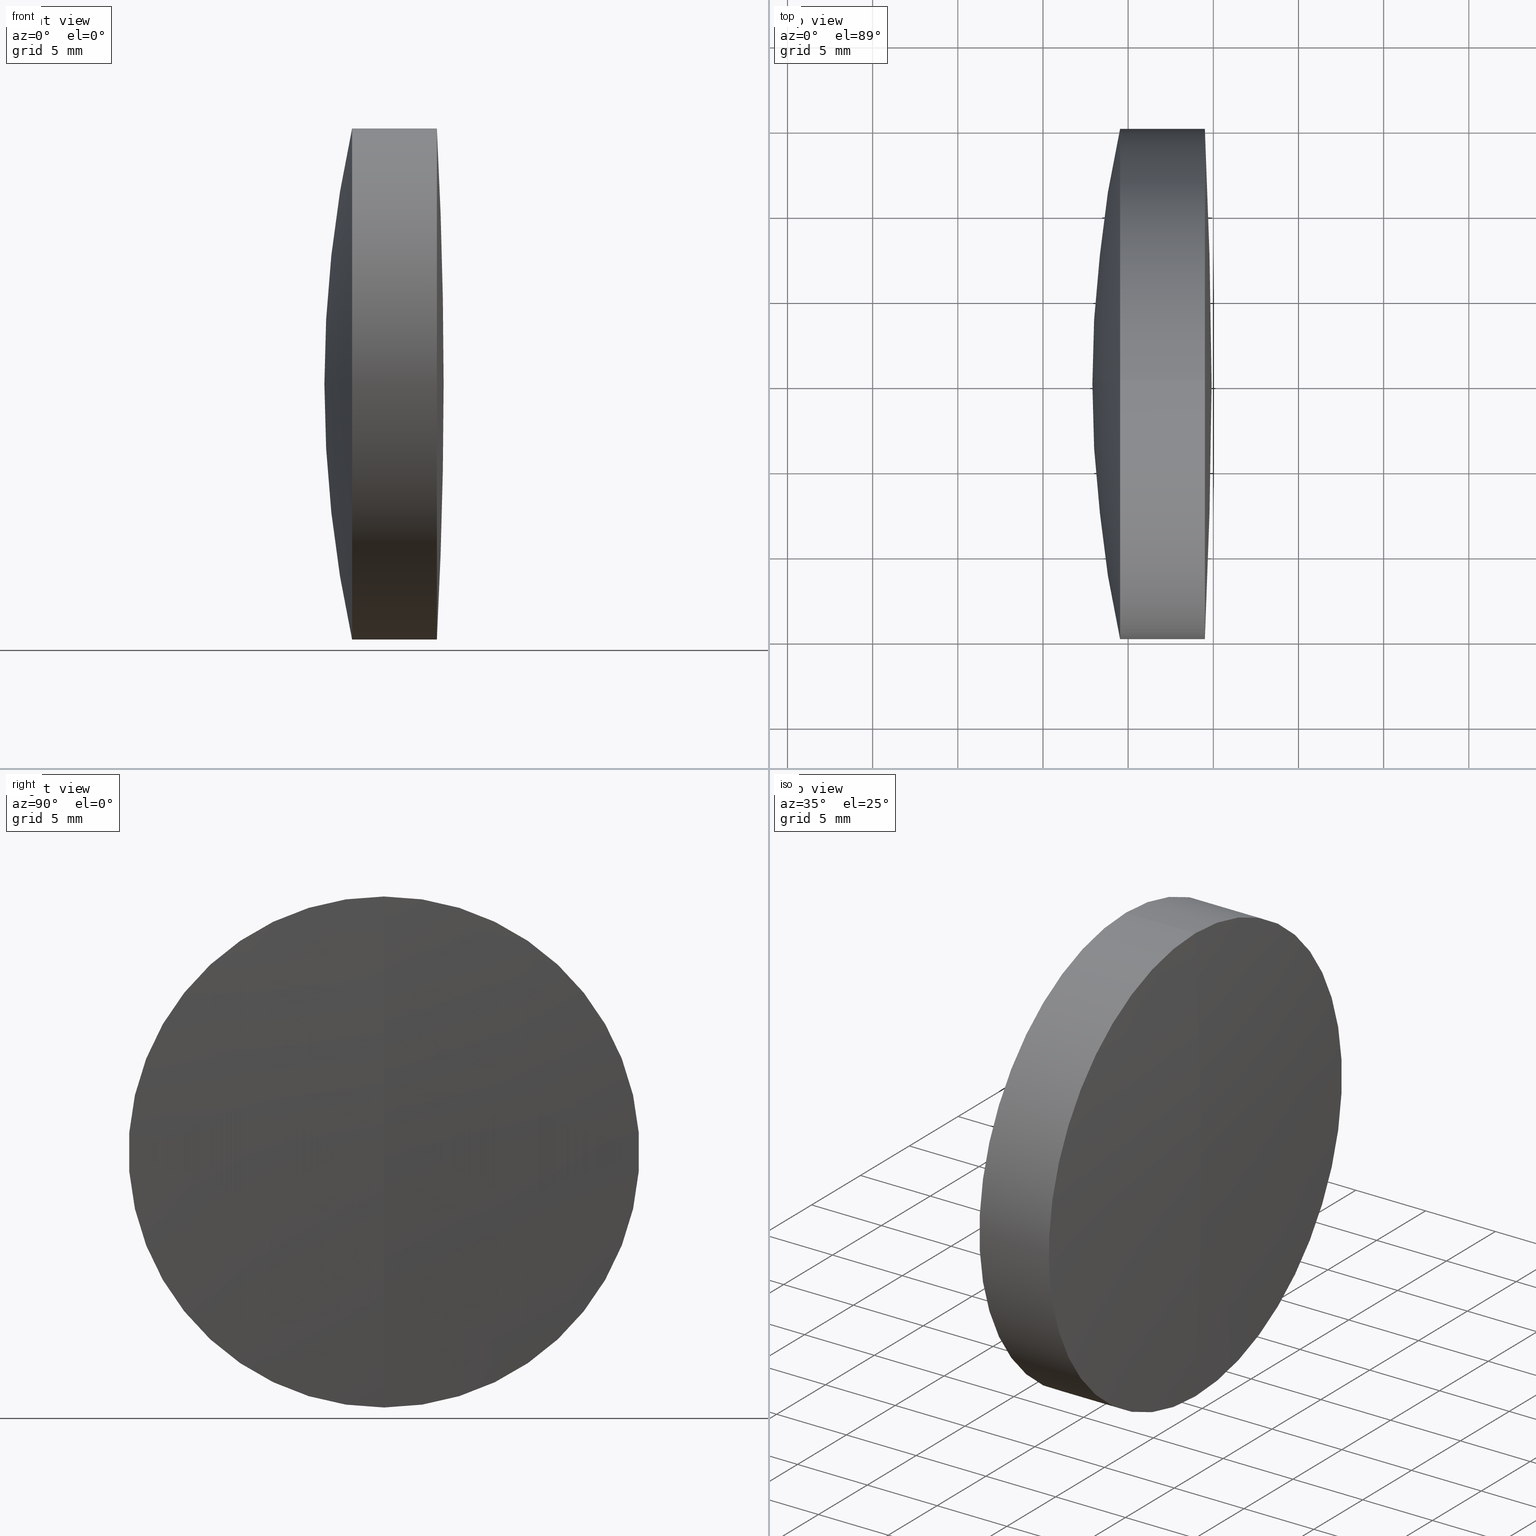
[diagram: canonical four-view strip — front | top / right | iso, engineering-drawing reading convention]
A machine part, canonical four-view strip (front | top / right | iso — engineering-drawing reading convention). The complete STEP part file that produces these views, byte-faithful:
ISO-10303-21;
HEADER;
FILE_DESCRIPTION (( 'STEP AP214' ),
    '1' );
FILE_NAME ('145068.STEP',
    '2019-05-15T03:12:47',
    ( 'user' ),
    ( '΢���й�' ),
    'SwSTEP 2.0',
    'SolidWorks 2016',
    '' );
FILE_SCHEMA (( 'AUTOMOTIVE_DESIGN' ));
ENDSEC;

DATA;
#1 = ORIENTED_EDGE ( 'NONE', *, *, #189, .F. ) ;
#2 = LINE ( 'NONE', #83, #293 ) ;
#3 = CYLINDRICAL_SURFACE ( 'NONE', #71, 14.99999999999988100 ) ;
#4 = DIRECTION ( 'NONE',  ( 0.0000000000000000000, 1.000000000000000000, 0.0000000000000000000 ) ) ;
#5 = FILL_AREA_STYLE ('',( #304 ) ) ;
#6 = FILL_AREA_STYLE ('',( #11 ) ) ;
#7 = AXIS2_PLACEMENT_3D ( 'NONE', #138, #292, #113 ) ;
#8 = ORIENTED_EDGE ( 'NONE', *, *, #305, .T. ) ;
#9 = PRESENTATION_STYLE_ASSIGNMENT (( #270 ) ) ;
#10 = AXIS2_PLACEMENT_3D ( 'NONE', #191, #13, #168 ) ;
#11 = FILL_AREA_STYLE_COLOUR ( '', #96 ) ;
#12 = ORIENTED_EDGE ( 'NONE', *, *, #234, .T. ) ;
#13 = DIRECTION ( 'NONE',  ( -0.0000000000000000000, 1.000000000000000000, 1.224646799147353200E-016 ) ) ;
#14 = ORIENTED_EDGE ( 'NONE', *, *, #105, .T. ) ;
#15 = DIRECTION ( 'NONE',  ( 0.0000000000000000000, -1.224646799147353200E-016, 1.000000000000000000 ) ) ;
#16 = AXIS2_PLACEMENT_3D ( 'NONE', #241, #185, #32 ) ;
#17 = CARTESIAN_POINT ( 'NONE',  ( 234.5265290828657800, 0.0000000000000000000, 14.99999999999989300 ) ) ;
#18 = MECHANICAL_DESIGN_GEOMETRIC_PRESENTATION_REPRESENTATION (  '', ( #159 ), #197 ) ;
#19 = ORIENTED_EDGE ( 'NONE', *, *, #150, .T. ) ;
#20 = DIRECTION ( 'NONE',  ( 1.000000000000000000, 0.0000000000000000000, 0.0000000000000000000 ) ) ;
#21 = SPHERICAL_SURFACE ( 'NONE', #92, 284.3999999999999800 ) ;
#22 = CARTESIAN_POINT ( 'NONE',  ( 180.9005007387521300, 0.0000000000000000000, -2.168404344971008900E-016 ) ) ;
#23 = ORIENTED_EDGE ( 'NONE', *, *, #202, .F. ) ;
#24 = ADVANCED_FACE ( 'NONE', ( #37 ), #240, .T. ) ;
#25 = CIRCLE ( 'NONE', #215, 57.00000000000033400 ) ;
#26 = ADVANCED_FACE ( 'NONE', ( #314 ), #21, .T. ) ;
#27 = CARTESIAN_POINT ( 'NONE',  ( 302.9005007387524400, 0.0000000000000000000, -2.198847408964090500E-013 ) ) ;
#28 = PRODUCT_DEFINITION_SHAPE ( 'NONE', 'NONE',  #72 ) ;
#29 = PRODUCT_CONTEXT ( 'NONE', #160, 'mechanical' ) ;
#30 = DIRECTION ( 'NONE',  ( 0.0000000000000000000, -1.224646799147353200E-016, 1.000000000000000000 ) ) ;
#31 = LINE ( 'NONE', #164, #345 ) ;
#32 = DIRECTION ( 'NONE',  ( 0.0000000000000000000, 0.0000000000000000000, -1.000000000000000000 ) ) ;
#33 = ADVANCED_BREP_SHAPE_REPRESENTATION ( '145068', ( #210, #43, #287 ), #235 ) ;
#34 = DIRECTION ( 'NONE',  ( -1.000000000000000000, -0.0000000000000000000, -0.0000000000000000000 ) ) ;
#35 = DIRECTION ( 'NONE',  ( -1.000000000000000000, -0.0000000000000000000, -0.0000000000000000000 ) ) ;
#36 = DIRECTION ( 'NONE',  ( 0.0000000000000000000, 1.000000000000000000, 0.0000000000000000000 ) ) ;
#37 = FACE_OUTER_BOUND ( 'NONE', #280, .T. ) ;
#38 = CARTESIAN_POINT ( 'NONE',  ( -44.49949926124752200, 0.0000000000000000000, 0.0000000000000000000 ) ) ;
#39 = FACE_OUTER_BOUND ( 'NONE', #331, .T. ) ;
#40 = ORIENTED_EDGE ( 'NONE', *, *, #63, .T. ) ;
#41 = DIRECTION ( 'NONE',  ( -0.0000000000000000000, 1.000000000000000000, 1.224646799147353200E-016 ) ) ;
#42 = CARTESIAN_POINT ( 'NONE',  ( 302.9005007387524400, 0.0000000000000000000, -2.198847408964090500E-013 ) ) ;
#43 = MANIFOLD_SOLID_BREP ( '��ת3', #212 ) ;
#44 = CARTESIAN_POINT ( 'NONE',  ( 239.5046556379369900, 1.836970198721015000E-015, -14.99999999999987400 ) ) ;
#45 = AXIS2_PLACEMENT_3D ( 'NONE', #221, #266, #169 ) ;
#46 = VERTEX_POINT ( 'NONE', #17 ) ;
#47 = SURFACE_STYLE_FILL_AREA ( #219 ) ;
#48 = EDGE_CURVE ( 'NONE', #285, #339, #148, .T. ) ;
#49 = CARTESIAN_POINT ( 'NONE',  ( 239.5046556379369900, 0.0000000000000000000, 14.99999999999987400 ) ) ;
#50 = STYLED_ITEM ( 'NONE', ( #124 ), #210 ) ;
#51 = ORIENTED_EDGE ( 'NONE', *, *, #347, .F. ) ;
#52 = DIRECTION ( 'NONE',  ( 0.0000000000000000000, 1.000000000000000000, 0.0000000000000000000 ) ) ;
#53 = AXIS2_PLACEMENT_3D ( 'NONE', #192, #330, #85 ) ;
#54 = FACE_OUTER_BOUND ( 'NONE', #298, .T. ) ;
#55 = ORIENTED_EDGE ( 'NONE', *, *, #84, .F. ) ;
#56 = DIRECTION ( 'NONE',  ( 0.0000000000000000000, 0.0000000000000000000, 1.000000000000000000 ) ) ;
#57 = SURFACE_SIDE_STYLE ('',( #68 ) ) ;
#58 = AXIS2_PLACEMENT_3D ( 'NONE', #299, #119, #268 ) ;
#59 = VERTEX_POINT ( 'NONE', #173 ) ;
#60 = DIRECTION ( 'NONE',  ( -1.000000000000000000, -0.0000000000000000000, -0.0000000000000000000 ) ) ;
#61 = DIRECTION ( 'NONE',  ( -0.0000000000000000000, 1.000000000000000000, 1.224646799147353200E-016 ) ) ;
#62 = CARTESIAN_POINT ( 'NONE',  ( 234.5265290828657800, 1.836970198721017000E-015, -15.00000000000011400 ) ) ;
#63 = EDGE_CURVE ( 'NONE', #156, #339, #102, .T. ) ;
#64 =( NAMED_UNIT ( * ) PLANE_ANGLE_UNIT ( ) SI_UNIT ( $, .RADIAN. ) );
#65 = APPLICATION_PROTOCOL_DEFINITION ( 'draft international standard', 'automotive_design', 1998, #160 ) ;
#66 = PRODUCT ( '145068', '145068', '', ( #29 ) ) ;
#67 = ORIENTED_EDGE ( 'NONE', *, *, #123, .T. ) ;
#68 = SURFACE_STYLE_FILL_AREA ( #6 ) ;
#69 = ORIENTED_EDGE ( 'NONE', *, *, #224, .T. ) ;
#70 = AXIS2_PLACEMENT_3D ( 'NONE', #225, #41, #15 ) ;
#71 = AXIS2_PLACEMENT_3D ( 'NONE', #265, #60, #110 ) ;
#72 = PRODUCT_DEFINITION ( 'δ֪', '', #205, #223 ) ;
#73 = COLOUR_RGB ( '',1.000000000000000000, 1.000000000000000000, 1.000000000000000000 ) ;
#74 = EDGE_CURVE ( 'NONE', #328, #46, #336, .T. ) ;
#75 = DIRECTION ( 'NONE',  ( 0.0000000000000000000, 1.000000000000000000, 0.0000000000000000000 ) ) ;
#76 = VERTEX_POINT ( 'NONE', #143 ) ;
#77 = CARTESIAN_POINT ( 'NONE',  ( 235.8914090782225800, 0.0000000000000000000, 14.99999999999989200 ) ) ;
#78 = DIRECTION ( 'NONE',  ( -0.0000000000000000000, 1.000000000000000000, 1.224646799147353200E-016 ) ) ;
#79 = AXIS2_PLACEMENT_3D ( 'NONE', #188, #75, #166 ) ;
#80 = APPLICATION_PROTOCOL_DEFINITION ( 'draft international standard', 'automotive_design', 1998, #262 ) ;
#81 = AXIS2_PLACEMENT_3D ( 'NONE', #325, #134, #290 ) ;
#82 = ORIENTED_EDGE ( 'NONE', *, *, #130, .F. ) ;
#83 = CARTESIAN_POINT ( 'NONE',  ( -0.5519199926577972300, 0.0000000000000000000, 14.99999999999988100 ) ) ;
#84 = EDGE_CURVE ( 'NONE', #76, #289, #136, .T. ) ;
#85 = DIRECTION ( 'NONE',  ( 0.0000000000000000000, 0.0000000000000000000, 1.000000000000000000 ) ) ;
#86 = DIRECTION ( 'NONE',  ( 0.0000000000000000000, -1.224646799147353200E-016, 1.000000000000000000 ) ) ;
#87 = ORIENTED_EDGE ( 'NONE', *, *, #63, .F. ) ;
#88 = DIRECTION ( 'NONE',  ( 0.0000000000000000000, 0.0000000000000000000, 1.000000000000000000 ) ) ;
#89 =( NAMED_UNIT ( * ) PLANE_ANGLE_UNIT ( ) SI_UNIT ( $, .RADIAN. ) );
#90 = AXIS2_PLACEMENT_3D ( 'NONE', #195, #310, #338 ) ;
#91 = DIRECTION ( 'NONE',  ( -1.000000000000000000, -0.0000000000000000000, -0.0000000000000000000 ) ) ;
#92 = AXIS2_PLACEMENT_3D ( 'NONE', #141, #36, #115 ) ;
#93 = CARTESIAN_POINT ( 'NONE',  ( 235.8914090782225800, 0.0000000000000000000, 0.0000000000000000000 ) ) ;
#94 = ORIENTED_EDGE ( 'NONE', *, *, #305, .F. ) ;
#95 = DIRECTION ( 'NONE',  ( 0.0000000000000000000, 0.0000000000000000000, 1.000000000000000000 ) ) ;
#96 = COLOUR_RGB ( '',1.000000000000000000, 1.000000000000000000, 1.000000000000000000 ) ;
#97 = UNCERTAINTY_MEASURE_WITH_UNIT (LENGTH_MEASURE( 1.000000000000000100E-005 ), #147, 'distance_accuracy_value', 'NONE');
#98 =( NAMED_UNIT ( * ) SI_UNIT ( $, .STERADIAN. ) SOLID_ANGLE_UNIT ( ) );
#99 = AXIS2_PLACEMENT_3D ( 'NONE', #38, #259, #238 ) ;
#100 = FACE_OUTER_BOUND ( 'NONE', #344, .T. ) ;
#101 = ORIENTED_EDGE ( 'NONE', *, *, #130, .T. ) ;
#102 = CIRCLE ( 'NONE', #70, 284.3999999999999800 ) ;
#103 = ORIENTED_EDGE ( 'NONE', *, *, #133, .T. ) ;
#104 = ORIENTED_EDGE ( 'NONE', *, *, #48, .F. ) ;
#105 = EDGE_CURVE ( 'NONE', #59, #257, #132, .T. ) ;
#106 = ORIENTED_EDGE ( 'NONE', *, *, #254, .F. ) ;
#107 =( NAMED_UNIT ( * ) PLANE_ANGLE_UNIT ( ) SI_UNIT ( $, .RADIAN. ) );
#108 = AXIS2_PLACEMENT_3D ( 'NONE', #295, #114, #267 ) ;
#109 = SURFACE_STYLE_FILL_AREA ( #5 ) ;
#110 = DIRECTION ( 'NONE',  ( 0.0000000000000000000, 0.0000000000000000000, 1.000000000000000000 ) ) ;
#111 = EDGE_CURVE ( 'NONE', #156, #285, #232, .T. ) ;
#112 = ORIENTED_EDGE ( 'NONE', *, *, #202, .T. ) ;
#113 = DIRECTION ( 'NONE',  ( 0.0000000000000000000, 0.0000000000000000000, 1.000000000000000000 ) ) ;
#114 = DIRECTION ( 'NONE',  ( -1.000000000000000000, -0.0000000000000000000, -0.0000000000000000000 ) ) ;
#115 = DIRECTION ( 'NONE',  ( 0.0000000000000000000, 0.0000000000000000000, 1.000000000000000000 ) ) ;
#116 = AXIS2_PLACEMENT_3D ( 'NONE', #193, #4, #228 ) ;
#117 = DIRECTION ( 'NONE',  ( -1.000000000000000000, -0.0000000000000000000, -0.0000000000000000000 ) ) ;
#118 = SPHERICAL_SURFACE ( 'NONE', #283, 69.99999999999998600 ) ;
#119 = DIRECTION ( 'NONE',  ( -1.000000000000000000, -0.0000000000000000000, -0.0000000000000000000 ) ) ;
#120 = DIRECTION ( 'NONE',  ( -1.000000000000000000, -0.0000000000000000000, -0.0000000000000000000 ) ) ;
#121 = SURFACE_SIDE_STYLE ('',( #47 ) ) ;
#122 = CARTESIAN_POINT ( 'NONE',  ( 235.8914090782225800, 0.0000000000000000000, 0.0000000000000000000 ) ) ;
#123 = EDGE_CURVE ( 'NONE', #289, #328, #207, .T. ) ;
#124 = PRESENTATION_STYLE_ASSIGNMENT (( #324 ) ) ;
#125 = AXIS2_PLACEMENT_3D ( 'NONE', #93, #131, #320 ) ;
#126 = ADVANCED_FACE ( 'NONE', ( #39 ), #213, .T. ) ;
#127 = ADVANCED_FACE ( 'NONE', ( #275 ), #3, .T. ) ;
#128 = SPHERICAL_SURFACE ( 'NONE', #316, 57.00000000000033400 ) ;
#129 = ORIENTED_EDGE ( 'NONE', *, *, #111, .F. ) ;
#130 = EDGE_CURVE ( 'NONE', #339, #59, #309, .T. ) ;
#131 = DIRECTION ( 'NONE',  ( -1.000000000000000000, -0.0000000000000000000, -0.0000000000000000000 ) ) ;
#132 = CIRCLE ( 'NONE', #108, 14.99999999999988600 ) ;
#133 = EDGE_CURVE ( 'NONE', #328, #237, #203, .T. ) ;
#134 = DIRECTION ( 'NONE',  ( 0.0000000000000000000, -1.000000000000000000, 0.0000000000000000000 ) ) ;
#135 = ORIENTED_EDGE ( 'NONE', *, *, #196, .F. ) ;
#136 = CIRCLE ( 'NONE', #10, 57.00000000000033400 ) ;
#137 = ORIENTED_EDGE ( 'NONE', *, *, #150, .F. ) ;
#138 = CARTESIAN_POINT ( 'NONE',  ( 239.5046556379369900, 0.0000000000000000000, 0.0000000000000000000 ) ) ;
#139 = AXIS2_PLACEMENT_3D ( 'NONE', #288, #52, #220 ) ;
#140 = DIRECTION ( 'NONE',  ( 0.0000000000000000000, 0.0000000000000000000, 1.000000000000000000 ) ) ;
#141 = CARTESIAN_POINT ( 'NONE',  ( -44.49949926124752200, 0.0000000000000000000, 0.0000000000000000000 ) ) ;
#142 = SPHERICAL_SURFACE ( 'NONE', #79, 57.00000000000033400 ) ;
#143 = CARTESIAN_POINT ( 'NONE',  ( 237.9005007387524700, 0.0000000000000000000, 3.273402943072876500E-015 ) ) ;
#144 = ORIENTED_EDGE ( 'NONE', *, *, #84, .T. ) ;
#145 = FACE_OUTER_BOUND ( 'NONE', #179, .T. ) ;
#146 = CIRCLE ( 'NONE', #81, 57.00000000000033400 ) ;
#147 =( LENGTH_UNIT ( ) NAMED_UNIT ( * ) SI_UNIT ( .MILLI., .METRE. ) );
#148 = CIRCLE ( 'NONE', #58, 14.99999999999987400 ) ;
#149 = ADVANCED_FACE ( 'NONE', ( #245 ), #163, .F. ) ;
#150 = EDGE_CURVE ( 'NONE', #339, #285, #315, .T. ) ;
#151 = DIRECTION ( 'NONE',  ( 0.0000000000000000000, 1.000000000000000000, 0.0000000000000000000 ) ) ;
#152 = ADVANCED_FACE ( 'NONE', ( #145 ), #329, .T. ) ;
#153 = UNCERTAINTY_MEASURE_WITH_UNIT (LENGTH_MEASURE( 1.000000000000000100E-005 ), #162, 'distance_accuracy_value', 'NONE');
#154 = ADVANCED_FACE ( 'NONE', ( #178 ), #142, .F. ) ;
#155 =( GEOMETRIC_REPRESENTATION_CONTEXT ( 3 ) GLOBAL_UNCERTAINTY_ASSIGNED_CONTEXT ( ( #311 ) ) GLOBAL_UNIT_ASSIGNED_CONTEXT ( ( #343, #89, #301 ) ) REPRESENTATION_CONTEXT ( 'NONE', 'WORKASPACE' ) );
#156 = VERTEX_POINT ( 'NONE', #216 ) ;
#157 = DIRECTION ( 'NONE',  ( 0.0000000000000000000, 0.0000000000000000000, 1.000000000000000000 ) ) ;
#158 = ORIENTED_EDGE ( 'NONE', *, *, #74, .T. ) ;
#159 = STYLED_ITEM ( 'NONE', ( #9 ), #43 ) ;
#160 = APPLICATION_CONTEXT ( 'automotive_design' ) ;
#161 = ORIENTED_EDGE ( 'NONE', *, *, #196, .T. ) ;
#162 =( LENGTH_UNIT ( ) NAMED_UNIT ( * ) SI_UNIT ( .MILLI., .METRE. ) );
#163 = SPHERICAL_SURFACE ( 'NONE', #139, 57.00000000000033400 ) ;
#164 = CARTESIAN_POINT ( 'NONE',  ( 124.5233095260452400, 0.0000000000000000000, 14.99999999999990200 ) ) ;
#165 = MECHANICAL_DESIGN_GEOMETRIC_PRESENTATION_REPRESENTATION (  '', ( #170 ), #155 ) ;
#166 = DIRECTION ( 'NONE',  ( 0.0000000000000000000, 0.0000000000000000000, 1.000000000000000000 ) ) ;
#167 = EDGE_LOOP ( 'NONE', ( #82, #19, #12, #319 ) ) ;
#168 = DIRECTION ( 'NONE',  ( 0.0000000000000000000, -1.224646799147353200E-016, 1.000000000000000000 ) ) ;
#169 = DIRECTION ( 'NONE',  ( 0.0000000000000000000, 0.0000000000000000000, 1.000000000000000000 ) ) ;
#170 = STYLED_ITEM ( 'NONE', ( #340 ), #33 ) ;
#171 = VERTEX_POINT ( 'NONE', #264 ) ;
#172 = DIRECTION ( 'NONE',  ( 0.0000000000000000000, 1.000000000000000000, 0.0000000000000000000 ) ) ;
#173 = CARTESIAN_POINT ( 'NONE',  ( 235.8914090782225800, 1.836970198721016600E-015, -14.99999999999989200 ) ) ;
#174 = MECHANICAL_DESIGN_GEOMETRIC_PRESENTATION_REPRESENTATION (  '', ( #50 ), #323 ) ;
#175 = CARTESIAN_POINT ( 'NONE',  ( 232.9005007387524700, 0.0000000000000000000, -2.155984770993932900E-013 ) ) ;
#176 = PRESENTATION_LAYER_ASSIGNMENT (  '', '', ( #159 ) ) ;
#177 = EDGE_LOOP ( 'NONE', ( #135, #248, #14 ) ) ;
#178 = FACE_OUTER_BOUND ( 'NONE', #342, .T. ) ;
#179 = EDGE_LOOP ( 'NONE', ( #87, #190, #137 ) ) ;
#180 = AXIS2_PLACEMENT_3D ( 'NONE', #27, #236, #258 ) ;
#181 = COLOUR_RGB ( '',1.000000000000000000, 1.000000000000000000, 1.000000000000000000 ) ;
#182 = ORIENTED_EDGE ( 'NONE', *, *, #347, .T. ) ;
#183 = CARTESIAN_POINT ( 'NONE',  ( 235.8914090782225800, 0.0000000000000000000, 0.0000000000000000000 ) ) ;
#184 = SURFACE_STYLE_USAGE ( .BOTH. , #322 ) ;
#185 = DIRECTION ( 'NONE',  ( 0.0000000000000000000, -1.000000000000000000, 0.0000000000000000000 ) ) ;
#186 = DIRECTION ( 'NONE',  ( 0.0000000000000000000, 0.0000000000000000000, 1.000000000000000000 ) ) ;
#187 = ORIENTED_EDGE ( 'NONE', *, *, #313, .F. ) ;
#188 = CARTESIAN_POINT ( 'NONE',  ( 180.9005007387521300, 0.0000000000000000000, -2.168404344971008900E-016 ) ) ;
#189 = EDGE_CURVE ( 'NONE', #46, #328, #286, .T. ) ;
#190 = ORIENTED_EDGE ( 'NONE', *, *, #111, .T. ) ;
#191 = CARTESIAN_POINT ( 'NONE',  ( 180.9005007387521300, 0.0000000000000000000, -2.168404344971008900E-016 ) ) ;
#192 = CARTESIAN_POINT ( 'NONE',  ( -44.49949926124752200, 0.0000000000000000000, 0.0000000000000000000 ) ) ;
#193 = CARTESIAN_POINT ( 'NONE',  ( 302.9005007387524400, 0.0000000000000000000, -2.198847408964090500E-013 ) ) ;
#194 = CARTESIAN_POINT ( 'NONE',  ( -0.5519199926577972300, 0.0000000000000000000, 0.0000000000000000000 ) ) ;
#195 = CARTESIAN_POINT ( 'NONE',  ( 180.9005007387521300, 0.0000000000000000000, -2.168404344971008900E-016 ) ) ;
#196 = EDGE_CURVE ( 'NONE', #171, #257, #146, .T. ) ;
#197 =( GEOMETRIC_REPRESENTATION_CONTEXT ( 3 ) GLOBAL_UNCERTAINTY_ASSIGNED_CONTEXT ( ( #211 ) ) GLOBAL_UNIT_ASSIGNED_CONTEXT ( ( #251, #64, #227 ) ) REPRESENTATION_CONTEXT ( 'NONE', 'WORKASPACE' ) );
#198 = FACE_OUTER_BOUND ( 'NONE', #206, .T. ) ;
#199 = AXIS2_PLACEMENT_3D ( 'NONE', #297, #117, #88 ) ;
#200 = ORIENTED_EDGE ( 'NONE', *, *, #123, .F. ) ;
#201 = CARTESIAN_POINT ( 'NONE',  ( 302.9005007387524400, 0.0000000000000000000, -2.198847408964090500E-013 ) ) ;
#202 = EDGE_CURVE ( 'NONE', #76, #263, #222, .T. ) ;
#203 = CIRCLE ( 'NONE', #204, 69.99999999999998600 ) ;
#204 = AXIS2_PLACEMENT_3D ( 'NONE', #42, #61, #86 ) ;
#205 = PRODUCT_DEFINITION_FORMATION_WITH_SPECIFIED_SOURCE ( '�κ�', '', #66, .NOT_KNOWN. ) ;
#206 = EDGE_LOOP ( 'NONE', ( #252, #67, #1, #282 ) ) ;
#207 = LINE ( 'NONE', #246, #244 ) ;
#208 = DIRECTION ( 'NONE',  ( -1.000000000000000000, -0.0000000000000000000, -0.0000000000000000000 ) ) ;
#209 = ORIENTED_EDGE ( 'NONE', *, *, #234, .F. ) ;
#210 = MANIFOLD_SOLID_BREP ( '��ת1', #271 ) ;
#211 = UNCERTAINTY_MEASURE_WITH_UNIT (LENGTH_MEASURE( 1.000000000000000100E-005 ), #251, 'distance_accuracy_value', 'NONE');
#212 = CLOSED_SHELL ( 'NONE', ( #26, #126, #149, #154, #127, #152 ) ) ;
#213 = CYLINDRICAL_SURFACE ( 'NONE', #260, 14.99999999999988100 ) ;
#214 = CARTESIAN_POINT ( 'NONE',  ( 234.5265290828657800, 0.0000000000000000000, 0.0000000000000000000 ) ) ;
#215 = AXIS2_PLACEMENT_3D ( 'NONE', #333, #78, #30 ) ;
#216 = CARTESIAN_POINT ( 'NONE',  ( 239.9005007387524700, 0.0000000000000000000, 1.741447748387536100E-014 ) ) ;
#217 = DIRECTION ( 'NONE',  ( -1.000000000000000000, -0.0000000000000000000, -0.0000000000000000000 ) ) ;
#218 = CIRCLE ( 'NONE', #180, 69.99999999999998600 ) ;
#219 = FILL_AREA_STYLE ('',( #296 ) ) ;
#220 = DIRECTION ( 'NONE',  ( 0.0000000000000000000, 0.0000000000000000000, 1.000000000000000000 ) ) ;
#221 = CARTESIAN_POINT ( 'NONE',  ( 124.5233095260452400, 0.0000000000000000000, 0.0000000000000000000 ) ) ;
#222 = CIRCLE ( 'NONE', #16, 57.00000000000033400 ) ;
#223 = PRODUCT_DEFINITION_CONTEXT ( 'detailed design', #262, 'design' ) ;
#224 = EDGE_CURVE ( 'NONE', #263, #46, #31, .T. ) ;
#225 = CARTESIAN_POINT ( 'NONE',  ( -44.49949926124752200, 0.0000000000000000000, 0.0000000000000000000 ) ) ;
#226 = PRESENTATION_LAYER_ASSIGNMENT (  '', '', ( #170 ) ) ;
#227 =( NAMED_UNIT ( * ) SI_UNIT ( $, .STERADIAN. ) SOLID_ANGLE_UNIT ( ) );
#228 = DIRECTION ( 'NONE',  ( 0.0000000000000000000, 0.0000000000000000000, 1.000000000000000000 ) ) ;
#229 = SPHERICAL_SURFACE ( 'NONE', #90, 57.00000000000033400 ) ;
#230 = DIRECTION ( 'NONE',  ( 0.0000000000000000000, 0.0000000000000000000, 1.000000000000000000 ) ) ;
#231 = EDGE_CURVE ( 'NONE', #171, #59, #25, .T. ) ;
#232 = CIRCLE ( 'NONE', #99, 284.3999999999999800 ) ;
#233 = EDGE_LOOP ( 'NONE', ( #274, #103, #106 ) ) ;
#234 = EDGE_CURVE ( 'NONE', #285, #257, #2, .T. ) ;
#235 =( GEOMETRIC_REPRESENTATION_CONTEXT ( 3 ) GLOBAL_UNCERTAINTY_ASSIGNED_CONTEXT ( ( #97 ) ) GLOBAL_UNIT_ASSIGNED_CONTEXT ( ( #147, #277, #98 ) ) REPRESENTATION_CONTEXT ( 'NONE', 'WORKASPACE' ) );
#236 = DIRECTION ( 'NONE',  ( 0.0000000000000000000, -1.000000000000000000, 0.0000000000000000000 ) ) ;
#237 = VERTEX_POINT ( 'NONE', #175 ) ;
#238 = DIRECTION ( 'NONE',  ( 0.0000000000000000000, 0.0000000000000000000, -1.000000000000000000 ) ) ;
#239 = CIRCLE ( 'NONE', #125, 14.99999999999989700 ) ;
#240 = CYLINDRICAL_SURFACE ( 'NONE', #45, 14.99999999999990200 ) ;
#241 = CARTESIAN_POINT ( 'NONE',  ( 180.9005007387521300, 0.0000000000000000000, -2.168404344971008900E-016 ) ) ;
#242 = SHAPE_DEFINITION_REPRESENTATION ( #28, #33 ) ;
#243 = EDGE_LOOP ( 'NONE', ( #129, #40, #104 ) ) ;
#244 = VECTOR ( 'NONE', #217, 1000.000000000000000 ) ;
#245 = FACE_OUTER_BOUND ( 'NONE', #177, .T. ) ;
#246 = CARTESIAN_POINT ( 'NONE',  ( 124.5233095260452400, 1.836970198721017800E-015, -14.99999999999990200 ) ) ;
#247 = ORIENTED_EDGE ( 'NONE', *, *, #133, .F. ) ;
#248 = ORIENTED_EDGE ( 'NONE', *, *, #231, .T. ) ;
#249 = DIRECTION ( 'NONE',  ( 0.0000000000000000000, 0.0000000000000000000, 1.000000000000000000 ) ) ;
#250 = CARTESIAN_POINT ( 'NONE',  ( 124.5233095260452400, 0.0000000000000000000, 0.0000000000000000000 ) ) ;
#251 =( LENGTH_UNIT ( ) NAMED_UNIT ( * ) SI_UNIT ( .MILLI., .METRE. ) );
#252 = ORIENTED_EDGE ( 'NONE', *, *, #313, .T. ) ;
#253 = CARTESIAN_POINT ( 'NONE',  ( 0.0000000000000000000, 0.0000000000000000000, 0.0000000000000000000 ) ) ;
#254 = EDGE_CURVE ( 'NONE', #46, #237, #218, .T. ) ;
#255 = EDGE_LOOP ( 'NONE', ( #247, #158, #318 ) ) ;
#256 = ADVANCED_FACE ( 'NONE', ( #308 ), #118, .T. ) ;
#257 = VERTEX_POINT ( 'NONE', #77 ) ;
#258 = DIRECTION ( 'NONE',  ( 0.0000000000000000000, 0.0000000000000000000, -1.000000000000000000 ) ) ;
#259 = DIRECTION ( 'NONE',  ( 0.0000000000000000000, -1.000000000000000000, 0.0000000000000000000 ) ) ;
#260 = AXIS2_PLACEMENT_3D ( 'NONE', #194, #91, #140 ) ;
#261 = DIRECTION ( 'NONE',  ( 0.0000000000000000000, 0.0000000000000000000, 1.000000000000000000 ) ) ;
#262 = APPLICATION_CONTEXT ( 'automotive_design' ) ;
#263 = VERTEX_POINT ( 'NONE', #346 ) ;
#264 = CARTESIAN_POINT ( 'NONE',  ( 237.9005007387524700, 0.0000000000000000000, 3.273402943072876500E-015 ) ) ;
#265 = CARTESIAN_POINT ( 'NONE',  ( -0.5519199926577972300, 0.0000000000000000000, 0.0000000000000000000 ) ) ;
#266 = DIRECTION ( 'NONE',  ( -1.000000000000000000, -0.0000000000000000000, -0.0000000000000000000 ) ) ;
#267 = DIRECTION ( 'NONE',  ( 0.0000000000000000000, 0.0000000000000000000, 1.000000000000000000 ) ) ;
#268 = DIRECTION ( 'NONE',  ( 0.0000000000000000000, 0.0000000000000000000, 1.000000000000000000 ) ) ;
#269 = DIRECTION ( 'NONE',  ( -1.000000000000000000, -0.0000000000000000000, -0.0000000000000000000 ) ) ;
#270 = SURFACE_STYLE_USAGE ( .BOTH. , #121 ) ;
#271 = CLOSED_SHELL ( 'NONE', ( #284, #312, #256, #334, #24, #332 ) ) ;
#272 = CARTESIAN_POINT ( 'NONE',  ( 235.8914090782225800, 1.836970198721017400E-015, -14.99999999999989700 ) ) ;
#273 = SPHERICAL_SURFACE ( 'NONE', #116, 69.99999999999998600 ) ;
#274 = ORIENTED_EDGE ( 'NONE', *, *, #189, .T. ) ;
#275 = FACE_OUTER_BOUND ( 'NONE', #167, .T. ) ;
#276 = ORIENTED_EDGE ( 'NONE', *, *, #231, .F. ) ;
#277 =( NAMED_UNIT ( * ) PLANE_ANGLE_UNIT ( ) SI_UNIT ( $, .RADIAN. ) );
#278 = AXIS2_PLACEMENT_3D ( 'NONE', #183, #208, #56 ) ;
#279 = PRODUCT_RELATED_PRODUCT_CATEGORY ( 'part', '', ( #66 ) ) ;
#280 = EDGE_LOOP ( 'NONE', ( #200, #182, #69, #306 ) ) ;
#281 = PRESENTATION_LAYER_ASSIGNMENT (  '', '', ( #50 ) ) ;
#282 = ORIENTED_EDGE ( 'NONE', *, *, #224, .F. ) ;
#283 = AXIS2_PLACEMENT_3D ( 'NONE', #201, #172, #249 ) ;
#284 = ADVANCED_FACE ( 'NONE', ( #54 ), #229, .T. ) ;
#285 = VERTEX_POINT ( 'NONE', #49 ) ;
#286 = CIRCLE ( 'NONE', #335, 14.99999999999990800 ) ;
#287 = AXIS2_PLACEMENT_3D ( 'NONE', #253, #157, #20 ) ;
#288 = CARTESIAN_POINT ( 'NONE',  ( 180.9005007387521300, 0.0000000000000000000, -2.168404344971008900E-016 ) ) ;
#289 = VERTEX_POINT ( 'NONE', #272 ) ;
#290 = DIRECTION ( 'NONE',  ( 0.0000000000000000000, 0.0000000000000000000, -1.000000000000000000 ) ) ;
#291 = DIRECTION ( 'NONE',  ( -1.000000000000000000, -0.0000000000000000000, -0.0000000000000000000 ) ) ;
#292 = DIRECTION ( 'NONE',  ( -1.000000000000000000, -0.0000000000000000000, -0.0000000000000000000 ) ) ;
#293 = VECTOR ( 'NONE', #291, 1000.000000000000000 ) ;
#294 = AXIS2_PLACEMENT_3D ( 'NONE', #250, #303, #230 ) ;
#295 = CARTESIAN_POINT ( 'NONE',  ( 235.8914090782225800, 0.0000000000000000000, 0.0000000000000000000 ) ) ;
#296 = FILL_AREA_STYLE_COLOUR ( '', #181 ) ;
#297 = CARTESIAN_POINT ( 'NONE',  ( 234.5265290828657800, 0.0000000000000000000, 0.0000000000000000000 ) ) ;
#298 = EDGE_LOOP ( 'NONE', ( #23, #144, #187 ) ) ;
#299 = CARTESIAN_POINT ( 'NONE',  ( 239.5046556379369900, 0.0000000000000000000, 0.0000000000000000000 ) ) ;
#300 = CIRCLE ( 'NONE', #278, 14.99999999999989700 ) ;
#301 =( NAMED_UNIT ( * ) SI_UNIT ( $, .STERADIAN. ) SOLID_ANGLE_UNIT ( ) );
#302 = ORIENTED_EDGE ( 'NONE', *, *, #48, .T. ) ;
#303 = DIRECTION ( 'NONE',  ( -1.000000000000000000, -0.0000000000000000000, -0.0000000000000000000 ) ) ;
#304 = FILL_AREA_STYLE_COLOUR ( '', #73 ) ;
#305 = EDGE_CURVE ( 'NONE', #257, #59, #321, .T. ) ;
#306 = ORIENTED_EDGE ( 'NONE', *, *, #74, .F. ) ;
#307 = AXIS2_PLACEMENT_3D ( 'NONE', #122, #269, #95 ) ;
#308 = FACE_OUTER_BOUND ( 'NONE', #233, .T. ) ;
#309 = LINE ( 'NONE', #327, #341 ) ;
#310 = DIRECTION ( 'NONE',  ( 0.0000000000000000000, 1.000000000000000000, 0.0000000000000000000 ) ) ;
#311 = UNCERTAINTY_MEASURE_WITH_UNIT (LENGTH_MEASURE( 1.000000000000000100E-005 ), #343, 'distance_accuracy_value', 'NONE');
#312 = ADVANCED_FACE ( 'NONE', ( #198 ), #337, .T. ) ;
#313 = EDGE_CURVE ( 'NONE', #263, #289, #300, .T. ) ;
#314 = FACE_OUTER_BOUND ( 'NONE', #243, .T. ) ;
#315 = CIRCLE ( 'NONE', #7, 14.99999999999987400 ) ;
#316 = AXIS2_PLACEMENT_3D ( 'NONE', #22, #151, #261 ) ;
#317 =( NAMED_UNIT ( * ) SI_UNIT ( $, .STERADIAN. ) SOLID_ANGLE_UNIT ( ) );
#318 = ORIENTED_EDGE ( 'NONE', *, *, #254, .T. ) ;
#319 = ORIENTED_EDGE ( 'NONE', *, *, #105, .F. ) ;
#320 = DIRECTION ( 'NONE',  ( 0.0000000000000000000, 0.0000000000000000000, 1.000000000000000000 ) ) ;
#321 = CIRCLE ( 'NONE', #307, 14.99999999999988600 ) ;
#322 = SURFACE_SIDE_STYLE ('',( #109 ) ) ;
#323 =( GEOMETRIC_REPRESENTATION_CONTEXT ( 3 ) GLOBAL_UNCERTAINTY_ASSIGNED_CONTEXT ( ( #153 ) ) GLOBAL_UNIT_ASSIGNED_CONTEXT ( ( #162, #107, #317 ) ) REPRESENTATION_CONTEXT ( 'NONE', 'WORKASPACE' ) );
#324 = SURFACE_STYLE_USAGE ( .BOTH. , #57 ) ;
#325 = CARTESIAN_POINT ( 'NONE',  ( 180.9005007387521300, 0.0000000000000000000, -2.168404344971008900E-016 ) ) ;
#326 = FACE_OUTER_BOUND ( 'NONE', #255, .T. ) ;
#327 = CARTESIAN_POINT ( 'NONE',  ( -0.5519199926577972300, 1.836970198721015400E-015, -14.99999999999988100 ) ) ;
#328 = VERTEX_POINT ( 'NONE', #62 ) ;
#329 = SPHERICAL_SURFACE ( 'NONE', #53, 284.3999999999999800 ) ;
#330 = DIRECTION ( 'NONE',  ( 0.0000000000000000000, 1.000000000000000000, 0.0000000000000000000 ) ) ;
#331 = EDGE_LOOP ( 'NONE', ( #302, #101, #94, #209 ) ) ;
#332 = ADVANCED_FACE ( 'NONE', ( #100 ), #128, .T. ) ;
#333 = CARTESIAN_POINT ( 'NONE',  ( 180.9005007387521300, 0.0000000000000000000, -2.168404344971008900E-016 ) ) ;
#334 = ADVANCED_FACE ( 'NONE', ( #326 ), #273, .T. ) ;
#335 = AXIS2_PLACEMENT_3D ( 'NONE', #214, #34, #186 ) ;
#336 = CIRCLE ( 'NONE', #199, 14.99999999999990800 ) ;
#337 = CYLINDRICAL_SURFACE ( 'NONE', #294, 14.99999999999990200 ) ;
#338 = DIRECTION ( 'NONE',  ( 0.0000000000000000000, 0.0000000000000000000, 1.000000000000000000 ) ) ;
#339 = VERTEX_POINT ( 'NONE', #44 ) ;
#340 = PRESENTATION_STYLE_ASSIGNMENT (( #184 ) ) ;
#341 = VECTOR ( 'NONE', #35, 1000.000000000000000 ) ;
#342 = EDGE_LOOP ( 'NONE', ( #276, #161, #8 ) ) ;
#343 =( LENGTH_UNIT ( ) NAMED_UNIT ( * ) SI_UNIT ( .MILLI., .METRE. ) );
#344 = EDGE_LOOP ( 'NONE', ( #55, #112, #51 ) ) ;
#345 = VECTOR ( 'NONE', #120, 1000.000000000000000 ) ;
#346 = CARTESIAN_POINT ( 'NONE',  ( 235.8914090782225800, 0.0000000000000000000, 14.99999999999989700 ) ) ;
#347 = EDGE_CURVE ( 'NONE', #289, #263, #239, .T. ) ;
ENDSEC;
END-ISO-10303-21;
